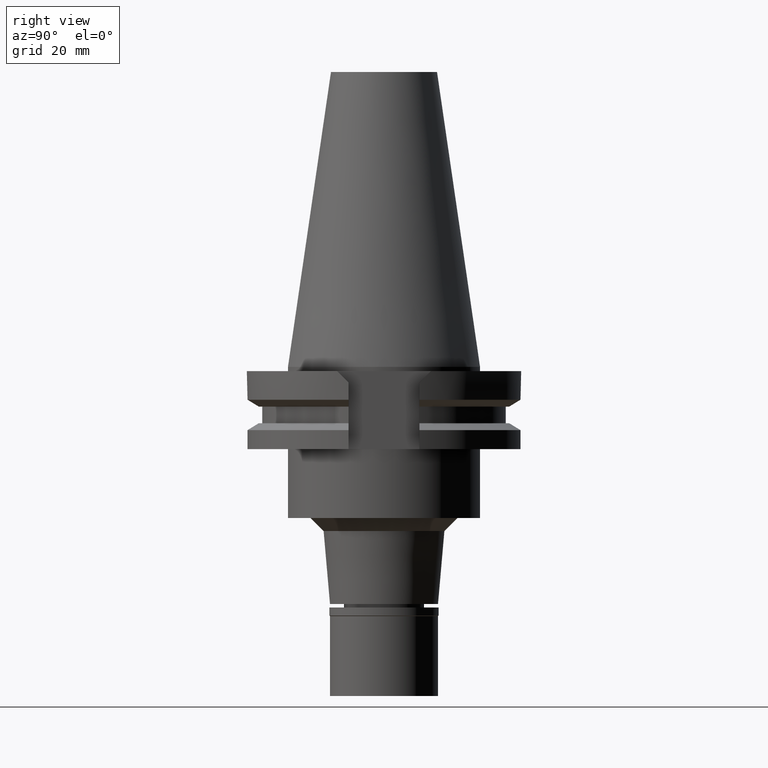
[diagram: clean part render]
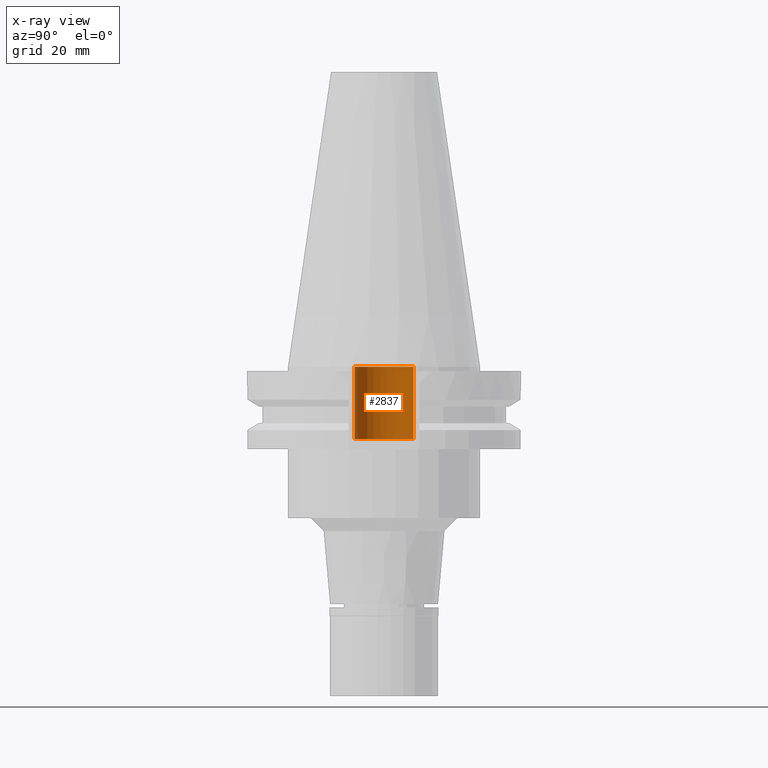
[diagram: x-ray — body ghosted, one internal face saturated and labeled with its STEP entity id]
A machine part, right view, then the same camera in x-ray: the body is ghosted and one INTERNAL B-rep face — a face not visible from any outside direction — is saturated and labeled: STEP entity #2837.
In plain terms, the highlighted cylindrical surface (edge-blend (fillet) strip) has radius 6.8 mm, axis along (0, 0, -1).
Its self-contained STEP definition (entity closure, byte-faithful):
#40 = CARTESIAN_POINT ( 'NONE',  ( 0.0000000000000000000, 6.799999999999999822, -16.75000000000000000 ) ) ;
#423 = AXIS2_PLACEMENT_3D ( 'NONE', #2678, #2151, #3116 ) ;
#516 = DIRECTION ( 'NONE',  ( 0.0000000000000000000, 0.0000000000000000000, -1.000000000000000000 ) ) ;
#521 = CARTESIAN_POINT ( 'NONE',  ( 0.0000000000000000000, 6.799999999999999822, -16.75000000000000000 ) ) ;
#524 = VECTOR ( 'NONE', #830, 1000.000000000000000 ) ;
#551 = LINE ( 'NONE', #40, #524 ) ;
#623 = EDGE_CURVE ( 'NONE', #2253, #717, #551, .T. ) ;
#717 = VERTEX_POINT ( 'NONE', #2395 ) ;
#724 = ORIENTED_EDGE ( 'NONE', *, *, #623, .T. ) ;
#730 = AXIS2_PLACEMENT_3D ( 'NONE', #1016, #516, #1561 ) ;
#760 = CYLINDRICAL_SURFACE ( 'NONE', #730, 6.799999999999999822 ) ;
#830 = DIRECTION ( 'NONE',  ( 0.0000000000000000000, 0.0000000000000000000, 1.000000000000000000 ) ) ;
#1016 = CARTESIAN_POINT ( 'NONE',  ( 0.0000000000000000000, 2.145121949555999817E-14, 75.16249999999999432 ) ) ;
#1043 = CARTESIAN_POINT ( 'NONE',  ( 0.0000000000000000000, -6.799999999999999822, -16.75000000000000000 ) ) ;
#1118 = CARTESIAN_POINT ( 'NONE',  ( 0.0000000000000000000, 2.145121949555999817E-14, 7.105427357600999334E-14 ) ) ;
#1201 = ORIENTED_EDGE ( 'NONE', *, *, #2465, .F. ) ;
#1330 = VECTOR ( 'NONE', #1372, 1000.000000000000000 ) ;
#1357 = ORIENTED_EDGE ( 'NONE', *, *, #1707, .T. ) ;
#1372 = DIRECTION ( 'NONE',  ( 0.0000000000000000000, 0.0000000000000000000, 1.000000000000000000 ) ) ;
#1561 = DIRECTION ( 'NONE',  ( 0.0000000000000000000, -1.000000000000000000, 0.0000000000000000000 ) ) ;
#1707 = EDGE_CURVE ( 'NONE', #1737, #2253, #2980, .T. ) ;
#1737 = VERTEX_POINT ( 'NONE', #1043 ) ;
#1824 = CIRCLE ( 'NONE', #1991, 6.799999999999999822 ) ;
#1963 = CARTESIAN_POINT ( 'NONE',  ( 0.0000000000000000000, -6.799999999999999822, -16.75000000000000000 ) ) ;
#1991 = AXIS2_PLACEMENT_3D ( 'NONE', #1118, #2158, #2192 ) ;
#2151 = DIRECTION ( 'NONE',  ( 0.0000000000000000000, 0.0000000000000000000, -1.000000000000000000 ) ) ;
#2158 = DIRECTION ( 'NONE',  ( 0.0000000000000000000, 0.0000000000000000000, -1.000000000000000000 ) ) ;
#2192 = DIRECTION ( 'NONE',  ( 0.0000000000000000000, -1.000000000000000000, 0.0000000000000000000 ) ) ;
#2253 = VERTEX_POINT ( 'NONE', #521 ) ;
#2393 = EDGE_LOOP ( 'NONE', ( #2742, #1201, #1357, #724 ) ) ;
#2395 = CARTESIAN_POINT ( 'NONE',  ( 0.0000000000000000000, 6.799999999999999822, 7.105427357600999334E-14 ) ) ;
#2465 = EDGE_CURVE ( 'NONE', #1737, #3342, #2466, .T. ) ;
#2466 = LINE ( 'NONE', #1963, #1330 ) ;
#2678 = CARTESIAN_POINT ( 'NONE',  ( 0.0000000000000000000, 2.145121949555999817E-14, -16.75000000000000000 ) ) ;
#2742 = ORIENTED_EDGE ( 'NONE', *, *, #2951, .F. ) ;
#2837 = ADVANCED_FACE ( 'NONE', ( #3196 ), #760, .F. ) ;
#2886 = CARTESIAN_POINT ( 'NONE',  ( 0.0000000000000000000, -6.799999999999999822, 7.105427357600999334E-14 ) ) ;
#2951 = EDGE_CURVE ( 'NONE', #3342, #717, #1824, .T. ) ;
#2980 = CIRCLE ( 'NONE', #423, 6.799999999999999822 ) ;
#3116 = DIRECTION ( 'NONE',  ( 0.0000000000000000000, -1.000000000000000000, 0.0000000000000000000 ) ) ;
#3196 = FACE_OUTER_BOUND ( 'NONE', #2393, .T. ) ;
#3342 = VERTEX_POINT ( 'NONE', #2886 ) ;